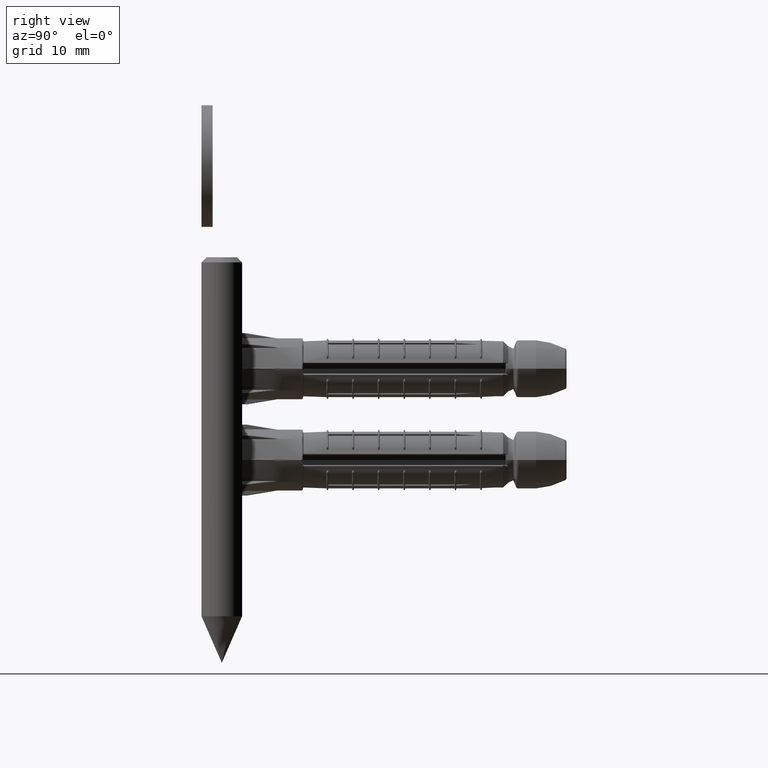
[diagram: clean part render]
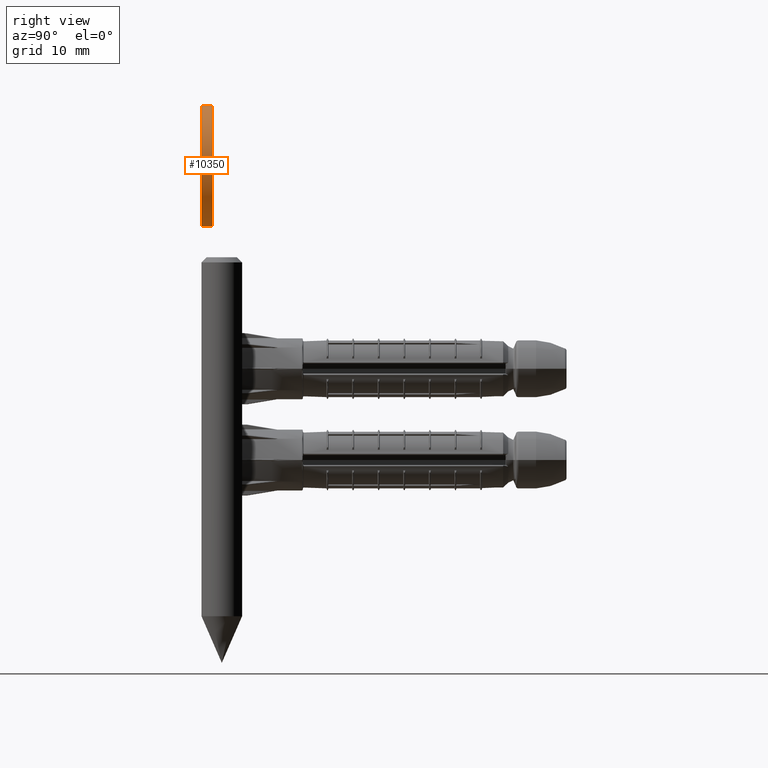
[diagram: same view with one face highlighted and labeled with its STEP entity id]
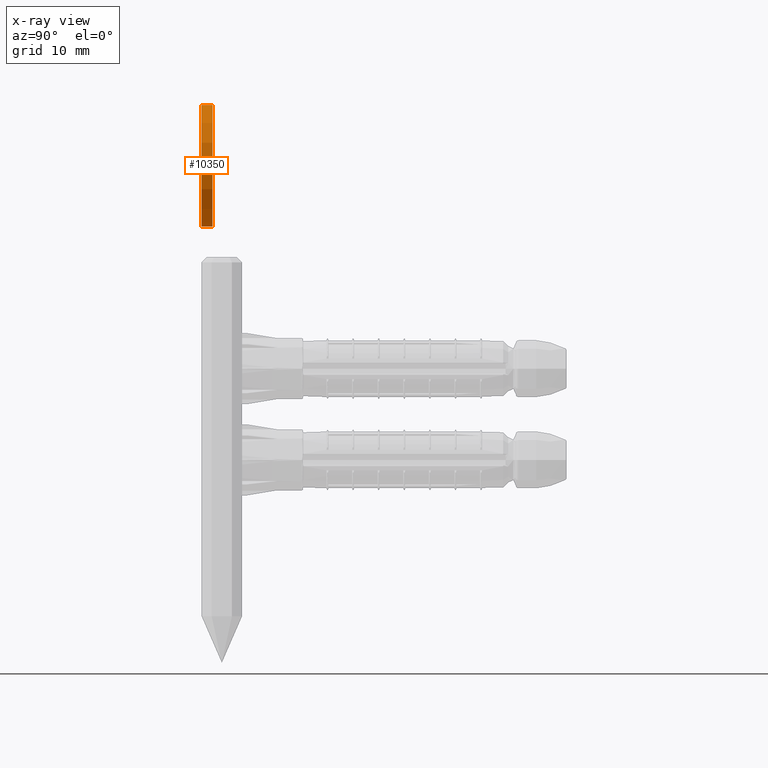
[diagram: x-ray of the same camera — body ghosted, the highlighted face saturated]
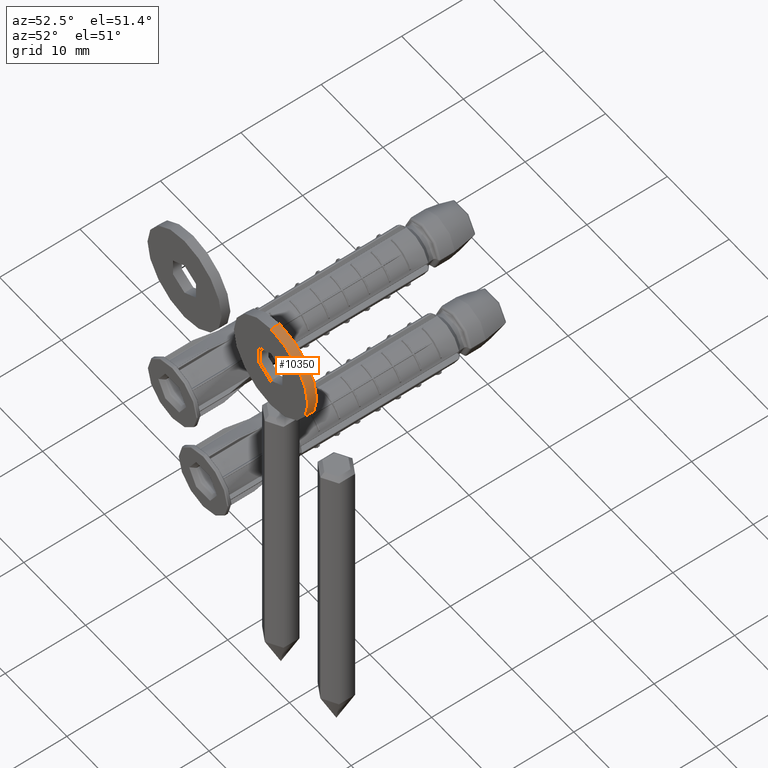
[diagram: same view with one face highlighted and labeled with its STEP entity id]
A machine part, right view. The second image highlights one B-rep face of the part: STEP entity #10350.
The next image is the same camera in x-ray: the body ghosted, the highlighted face saturated — about 0% of this face is hidden behind the body in this view.
A second angle (auxiliary view) of the same face is appended — the face is thin or edge-on in the first view.
In plain terms, the highlighted cylindrical surface (partial cylindrical patch) has radius 6 mm, axis along (-0, -1, -0).
Its self-contained STEP definition (entity closure, byte-faithful):
#1043 = LINE ( 'NONE', #27231, #20848 ) ;
#1214 = ORIENTED_EDGE ( 'NONE', *, *, #17098, .F. ) ;
#1373 = LINE ( 'NONE', #24141, #23449 ) ;
#2251 = CARTESIAN_POINT ( 'NONE',  ( 0.000000000000000000, 0.5500000000000000444, 0.000000000000000000 ) ) ;
#2936 = DIRECTION ( 'NONE',  ( -0.000000000000000000, -1.000000000000000000, -0.000000000000000000 ) ) ;
#4201 = DIRECTION ( 'NONE',  ( -0.000000000000000000, -1.000000000000000000, -0.000000000000000000 ) ) ;
#4629 = EDGE_LOOP ( 'NONE', ( #1214, #10319, #25232, #19930 ) ) ;
#5577 = DIRECTION ( 'NONE',  ( 0.000000000000000000, 0.000000000000000000, 1.000000000000000000 ) ) ;
#6791 = VERTEX_POINT ( 'NONE', #8065 ) ;
#7877 = FACE_OUTER_BOUND ( 'NONE', #4629, .T. ) ;
#8035 = CIRCLE ( 'NONE', #17137, 6.000000000000000888 ) ;
#8065 = CARTESIAN_POINT ( 'NONE',  ( 0.000000000000000000, -0.5500000000000000444, -6.000000000000000888 ) ) ;
#8663 = CARTESIAN_POINT ( 'NONE',  ( 0.000000000000000000, -0.5500000000000000444, 0.000000000000000000 ) ) ;
#9011 = AXIS2_PLACEMENT_3D ( 'NONE', #8663, #23380, #10451 ) ;
#9936 = CARTESIAN_POINT ( 'NONE',  ( 7.347880794884120722E-16, -0.5500000000000000444, 6.000000000000000888 ) ) ;
#10319 = ORIENTED_EDGE ( 'NONE', *, *, #16477, .F. ) ;
#10350 = ADVANCED_FACE ( 'NONE', ( #7877 ), #27314, .T. ) ;
#10451 = DIRECTION ( 'NONE',  ( 0.000000000000000000, 0.000000000000000000, 1.000000000000000000 ) ) ;
#10935 = VERTEX_POINT ( 'NONE', #21763 ) ;
#15593 = EDGE_CURVE ( 'NONE', #6791, #22182, #26791, .T. ) ;
#16477 = EDGE_CURVE ( 'NONE', #10935, #26524, #8035, .T. ) ;
#17098 = EDGE_CURVE ( 'NONE', #26524, #22182, #1043, .T. ) ;
#17137 = AXIS2_PLACEMENT_3D ( 'NONE', #20683, #26735, #5577 ) ;
#17642 = EDGE_CURVE ( 'NONE', #10935, #6791, #1373, .T. ) ;
#17908 = AXIS2_PLACEMENT_3D ( 'NONE', #2251, #20787, #24822 ) ;
#18749 = CARTESIAN_POINT ( 'NONE',  ( 7.347880794884120722E-16, 0.5500000000000000444, 6.000000000000000888 ) ) ;
#19930 = ORIENTED_EDGE ( 'NONE', *, *, #15593, .T. ) ;
#20683 = CARTESIAN_POINT ( 'NONE',  ( 0.000000000000000000, 0.5500000000000000444, 0.000000000000000000 ) ) ;
#20787 = DIRECTION ( 'NONE',  ( -0.000000000000000000, -1.000000000000000000, -0.000000000000000000 ) ) ;
#20848 = VECTOR ( 'NONE', #4201, 1000.000000000000000 ) ;
#21763 = CARTESIAN_POINT ( 'NONE',  ( 0.000000000000000000, 0.5500000000000000444, -6.000000000000000888 ) ) ;
#22182 = VERTEX_POINT ( 'NONE', #9936 ) ;
#23380 = DIRECTION ( 'NONE',  ( 0.000000000000000000, 1.000000000000000000, 0.000000000000000000 ) ) ;
#23449 = VECTOR ( 'NONE', #2936, 1000.000000000000000 ) ;
#24141 = CARTESIAN_POINT ( 'NONE',  ( 0.000000000000000000, 0.5500000000000000444, -6.000000000000000888 ) ) ;
#24822 = DIRECTION ( 'NONE',  ( 0.000000000000000000, 0.000000000000000000, -1.000000000000000000 ) ) ;
#25232 = ORIENTED_EDGE ( 'NONE', *, *, #17642, .T. ) ;
#26524 = VERTEX_POINT ( 'NONE', #18749 ) ;
#26735 = DIRECTION ( 'NONE',  ( 0.000000000000000000, 1.000000000000000000, 0.000000000000000000 ) ) ;
#26791 = CIRCLE ( 'NONE', #9011, 6.000000000000000888 ) ;
#27231 = CARTESIAN_POINT ( 'NONE',  ( 7.347880794884120722E-16, 0.5500000000000000444, 6.000000000000000888 ) ) ;
#27314 = CYLINDRICAL_SURFACE ( 'NONE', #17908, 6.000000000000000888 ) ;